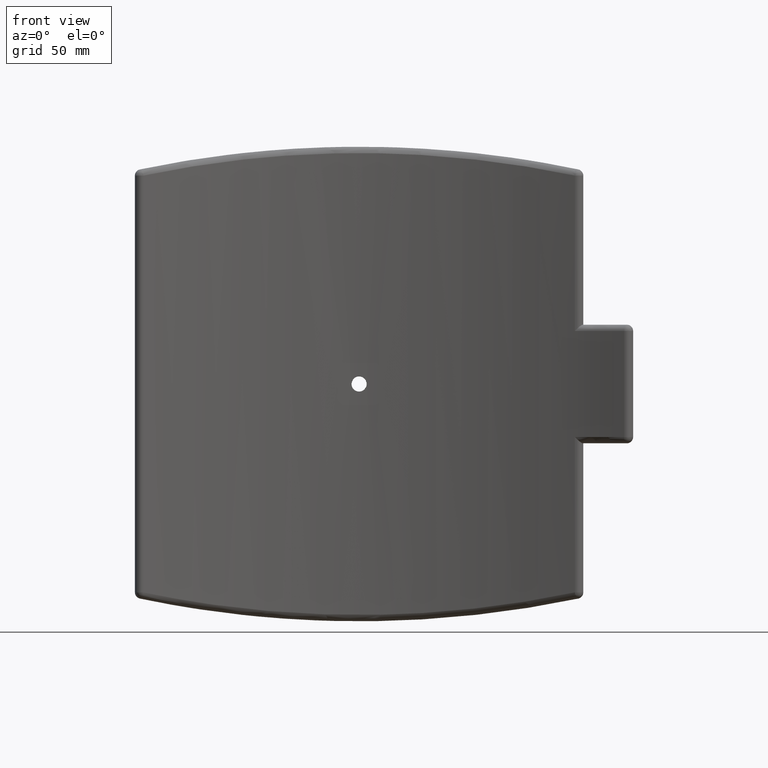
[diagram: clean part render]
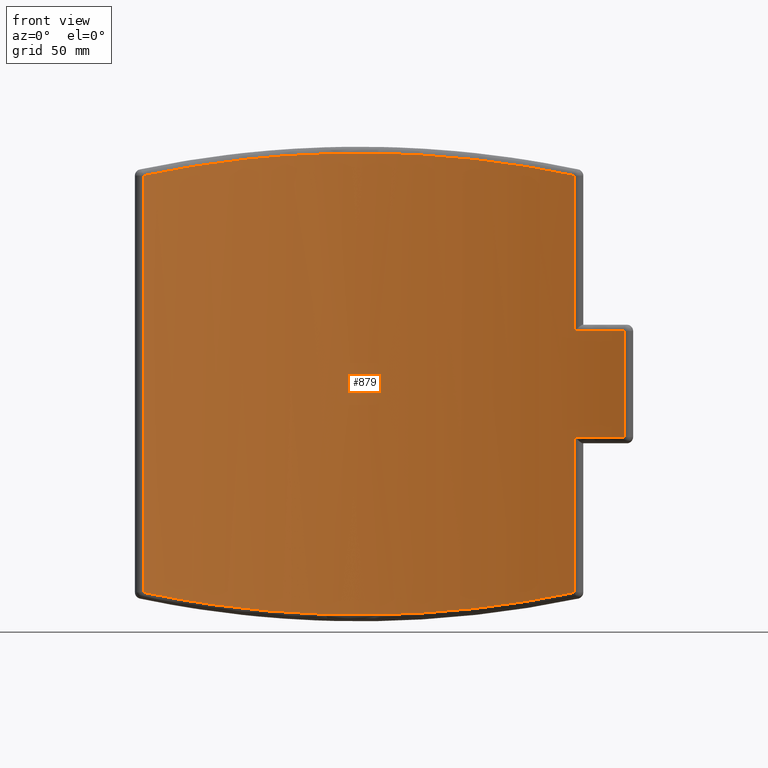
[diagram: same view with one face highlighted and labeled with its STEP entity id]
A machine part, front view. The second image highlights one B-rep face of the part: STEP entity #879.
In plain terms, the highlighted cylindrical surface (partial cylindrical patch) has radius 400 mm, axis along (0, 0, 1).
Its self-contained STEP definition (entity closure, byte-faithful):
#37=LINE('',#1982,#67);
#41=LINE('',#2053,#71);
#48=LINE('',#2094,#78);
#53=LINE('',#2193,#83);
#67=VECTOR('',#1194,67.);
#71=VECTOR('',#1210,98.2576130740142);
#78=VECTOR('',#1233,263.515226148029);
#83=VECTOR('',#1258,98.2576130740142);
#101=B_SPLINE_CURVE_WITH_KNOTS('',3,(#1668,#1669,#1670,#1671,#1672,#1673,
#1674,#1675,#1676,#1677,#1678,#1679,#1680,#1681,#1682,#1683,#1684,#1685,
#1686,#1687,#1688,#1689,#1690,#1691,#1692,#1693,#1694,#1695,#1696,#1697,
#1698,#1699,#1700,#1701),.UNSPECIFIED.,.T.,.F.,(4,2,2,2,2,2,2,2,2,2,2,2,
2,2,2,2,4),(0.,0.180811475596305,0.36162295119261,0.54243442666247,0.72324590213233,
0.904057377602189,1.08486885307205,1.26568032866835,1.44649180426466,1.62730327986096,
1.80811475545727,1.98892623092713,2.16973770639699,2.35054918186685,2.53136065733671,
2.71217213293301,2.89298360852932),.UNSPECIFIED.);
#106=B_SPLINE_CURVE_WITH_KNOTS('',3,(#2035,#2036,#2037,#2038,#2039,#2040,
#2041),.UNSPECIFIED.,.F.,.F.,(4,1,1,1,4),(-32.9962464688556,-24.9102683512551,
-16.8242902336545,-8.7383121160539,-4.69532305725361),.UNSPECIFIED.);
#112=B_SPLINE_CURVE_WITH_KNOTS('',3,(#2169,#2170,#2171,#2172,#2173,#2174,
#2175),.UNSPECIFIED.,.F.,.F.,(4,1,1,1,4),(-29.9565249796407,-25.9135359208404,
-17.8275578032399,-9.74157968563927,-1.65560156803869),.UNSPECIFIED.);
#141=CYLINDRICAL_SURFACE('',#1005,400.);
#178=FACE_BOUND('',#331,.T.);
#242=FACE_OUTER_BOUND('',#330,.T.);
#330=EDGE_LOOP('',(#791,#792,#793,#794,#795,#796,#797,#798));
#331=EDGE_LOOP('',(#799));
#390=CIRCLE('',#980,400.);
#393=CIRCLE('',#988,400.);
#416=VERTEX_POINT('',#1667);
#433=VERTEX_POINT('',#1795);
#438=VERTEX_POINT('',#1871);
#447=VERTEX_POINT('',#1897);
#448=VERTEX_POINT('',#1901);
#453=VERTEX_POINT('',#1974);
#458=VERTEX_POINT('',#1990);
#460=VERTEX_POINT('',#2052);
#464=VERTEX_POINT('',#2098);
#488=EDGE_CURVE('',#416,#416,#101,.T.);
#540=EDGE_CURVE('',#453,#447,#37,.T.);
#546=EDGE_CURVE('',#448,#458,#106,.T.);
#549=EDGE_CURVE('',#458,#460,#41,.T.);
#552=EDGE_CURVE('',#460,#453,#390,.T.);
#561=EDGE_CURVE('',#438,#448,#48,.T.);
#563=EDGE_CURVE('',#447,#464,#393,.T.);
#571=EDGE_CURVE('',#433,#438,#112,.T.);
#575=EDGE_CURVE('',#464,#433,#53,.T.);
#791=ORIENTED_EDGE('',*,*,#546,.F.);
#792=ORIENTED_EDGE('',*,*,#561,.F.);
#793=ORIENTED_EDGE('',*,*,#571,.F.);
#794=ORIENTED_EDGE('',*,*,#575,.F.);
#795=ORIENTED_EDGE('',*,*,#563,.F.);
#796=ORIENTED_EDGE('',*,*,#540,.F.);
#797=ORIENTED_EDGE('',*,*,#552,.F.);
#798=ORIENTED_EDGE('',*,*,#549,.F.);
#799=ORIENTED_EDGE('',*,*,#488,.T.);
#879=ADVANCED_FACE('',(#242,#178),#141,.F.);
#980=AXIS2_PLACEMENT_3D('',#2069,#1215,#1216);
#988=AXIS2_PLACEMENT_3D('',#2099,#1238,#1239);
#1005=AXIS2_PLACEMENT_3D('',#2209,#1282,#1283);
#1194=DIRECTION('',(0.,0.,-1.));
#1210=DIRECTION('',(0.,0.,-1.));
#1215=DIRECTION('center_axis',(0.,0.,-1.));
#1216=DIRECTION('ref_axis',(0.394111859510061,0.919062480027077,0.));
#1233=DIRECTION('',(0.,0.,1.));
#1238=DIRECTION('center_axis',(0.,0.,1.));
#1239=DIRECTION('ref_axis',(0.394111859510061,0.919062480027077,0.));
#1258=DIRECTION('',(0.,0.,-1.));
#1282=DIRECTION('center_axis',(0.,0.,1.));
#1283=DIRECTION('ref_axis',(-1.,0.,0.));
#1667=CARTESIAN_POINT('',(4.8,399.971198963125,0.));
#1668=CARTESIAN_POINT('Ctrl Pts',(4.8,399.971198963125,0.));
#1669=CARTESIAN_POINT('Ctrl Pts',(4.8,399.971198963125,-0.60270491865435));
#1670=CARTESIAN_POINT('Ctrl Pts',(4.67954810715036,399.972701352774,-1.24557898394146));
#1671=CARTESIAN_POINT('Ctrl Pts',(4.18968875407527,399.978132534846,-2.42819802337356));
#1672=CARTESIAN_POINT('Ctrl Pts',(3.82028161320396,399.981983446185,-2.9679434861869));
#1673=CARTESIAN_POINT('Ctrl Pts',(2.96794348648493,399.989216035394,-3.82028161290593));
#1674=CARTESIAN_POINT('Ctrl Pts',(2.4281980234325,399.993066825765,-4.18968875377165));
#1675=CARTESIAN_POINT('Ctrl Pts',(1.24557898376304,399.998497731325,-4.67954810750347));
#1676=CARTESIAN_POINT('Ctrl Pts',(0.602704918232866,400.,-4.8));
#1677=CARTESIAN_POINT('Ctrl Pts',(-0.602704918232867,400.,-4.8));
#1678=CARTESIAN_POINT('Ctrl Pts',(-1.24557898376304,399.998497731325,-4.67954810750347));
#1679=CARTESIAN_POINT('Ctrl Pts',(-2.4281980234325,399.993066825765,-4.18968875377165));
#1680=CARTESIAN_POINT('Ctrl Pts',(-2.96794348648493,399.989216035394,-3.82028161290593));
#1681=CARTESIAN_POINT('Ctrl Pts',(-3.82028161320396,399.981983446185,-2.9679434861869));
#1682=CARTESIAN_POINT('Ctrl Pts',(-4.18968875407527,399.978132534846,-2.42819802337356));
#1683=CARTESIAN_POINT('Ctrl Pts',(-4.67954810715036,399.972701352774,-1.24557898394146));
#1684=CARTESIAN_POINT('Ctrl Pts',(-4.8,399.971198963125,-0.602704918654349));
#1685=CARTESIAN_POINT('Ctrl Pts',(-4.8,399.971198963125,0.602704918654349));
#1686=CARTESIAN_POINT('Ctrl Pts',(-4.67954810715036,399.972701352774,1.24557898394146));
#1687=CARTESIAN_POINT('Ctrl Pts',(-4.18968875407527,399.978132534846,2.42819802337356));
#1688=CARTESIAN_POINT('Ctrl Pts',(-3.82028161320396,399.981983446185,2.9679434861869));
#1689=CARTESIAN_POINT('Ctrl Pts',(-2.96794348648493,399.989216035394,3.82028161290593));
#1690=CARTESIAN_POINT('Ctrl Pts',(-2.4281980234325,399.993066825765,4.18968875377165));
#1691=CARTESIAN_POINT('Ctrl Pts',(-1.24557898376304,399.998497731325,4.67954810750347));
#1692=CARTESIAN_POINT('Ctrl Pts',(-0.602704918232866,400.,4.8));
#1693=CARTESIAN_POINT('Ctrl Pts',(0.602704918232865,400.,4.8));
#1694=CARTESIAN_POINT('Ctrl Pts',(1.24557898376303,399.998497731325,4.67954810750347));
#1695=CARTESIAN_POINT('Ctrl Pts',(2.4281980234325,399.993066825765,4.18968875377165));
#1696=CARTESIAN_POINT('Ctrl Pts',(2.96794348648493,399.989216035394,3.82028161290593));
#1697=CARTESIAN_POINT('Ctrl Pts',(3.82028161320396,399.981983446185,2.9679434861869));
#1698=CARTESIAN_POINT('Ctrl Pts',(4.18968875407527,399.978132534846,2.42819802337356));
#1699=CARTESIAN_POINT('Ctrl Pts',(4.67954810715036,399.972701352774,1.24557898394146));
#1700=CARTESIAN_POINT('Ctrl Pts',(4.8,399.971198963125,0.60270491865435));
#1701=CARTESIAN_POINT('Ctrl Pts',(4.8,399.971198963125,0.));
#1795=CARTESIAN_POINT('',(136.386138613865,376.030346107864,-131.757613074014));
#1871=CARTESIAN_POINT('',(-136.386138613858,376.030346107866,-131.757613074014));
#1897=CARTESIAN_POINT('',(167.574257425746,363.206371431188,-33.5));
#1901=CARTESIAN_POINT('',(-136.386138613858,376.030346107866,131.757613074014));
#1974=CARTESIAN_POINT('',(167.574257425746,363.206371431188,33.5));
#1982=CARTESIAN_POINT('',(167.574257425746,363.206371431188,0.));
#1990=CARTESIAN_POINT('',(136.386138613865,376.030346107864,131.757613074014));
#2035=CARTESIAN_POINT('Ctrl Pts',(-136.386138613858,376.030346107866,131.757613074014));
#2036=CARTESIAN_POINT('Ctrl Pts',(-111.768134558721,384.959291732104,136.954736514122));
#2037=CARTESIAN_POINT('Ctrl Pts',(-60.2942634194223,398.130999879744,144.853218265608));
#2038=CARTESIAN_POINT('Ctrl Pts',(20.1927536335726,402.188387505684,147.334242610363));
#2039=CARTESIAN_POINT('Ctrl Pts',(86.3313341182623,392.139068703237,141.228673177637));
#2040=CARTESIAN_POINT('Ctrl Pts',(124.077029463407,380.494857773435,134.356197408854));
#2041=CARTESIAN_POINT('Ctrl Pts',(136.386138613865,376.030346107864,131.757613074014));
#2052=CARTESIAN_POINT('',(136.386138613865,376.030346107864,33.5));
#2053=CARTESIAN_POINT('',(136.386138613865,376.030346107864,0.));
#2069=CARTESIAN_POINT('Origin',(0.,0.,33.5));
#2094=CARTESIAN_POINT('',(-136.386138613858,376.030346107866,0.));
#2098=CARTESIAN_POINT('',(136.386138613865,376.030346107864,-33.5));
#2099=CARTESIAN_POINT('Origin',(0.,0.,-33.5));
#2169=CARTESIAN_POINT('Ctrl Pts',(136.386138613865,376.030346107863,-131.757613074014));
#2170=CARTESIAN_POINT('Ctrl Pts',(124.077029463407,380.494857773435,-134.356197408854));
#2171=CARTESIAN_POINT('Ctrl Pts',(86.3313341182626,392.139068703236,-141.228673177637));
#2172=CARTESIAN_POINT('Ctrl Pts',(20.1927536335725,402.188387505684,-147.334242610363));
#2173=CARTESIAN_POINT('Ctrl Pts',(-60.2942634194222,398.130999879744,-144.853218265608));
#2174=CARTESIAN_POINT('Ctrl Pts',(-111.768134558721,384.959291732104,-136.954736514122));
#2175=CARTESIAN_POINT('Ctrl Pts',(-136.386138613858,376.030346107866,-131.757613074014));
#2193=CARTESIAN_POINT('',(136.386138613865,376.030346107864,0.));
#2209=CARTESIAN_POINT('Origin',(0.,0.,0.));